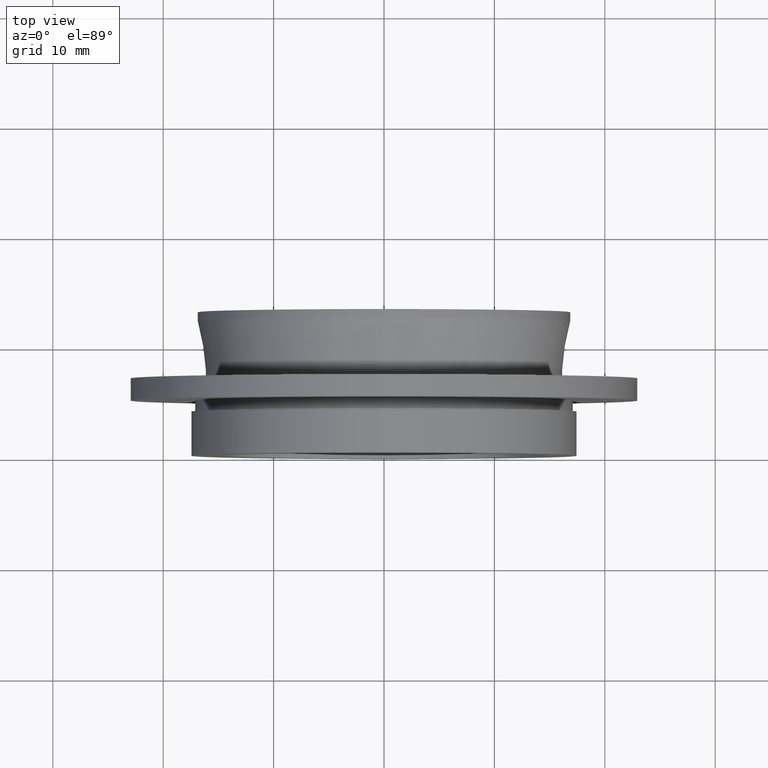
[diagram: clean part render]
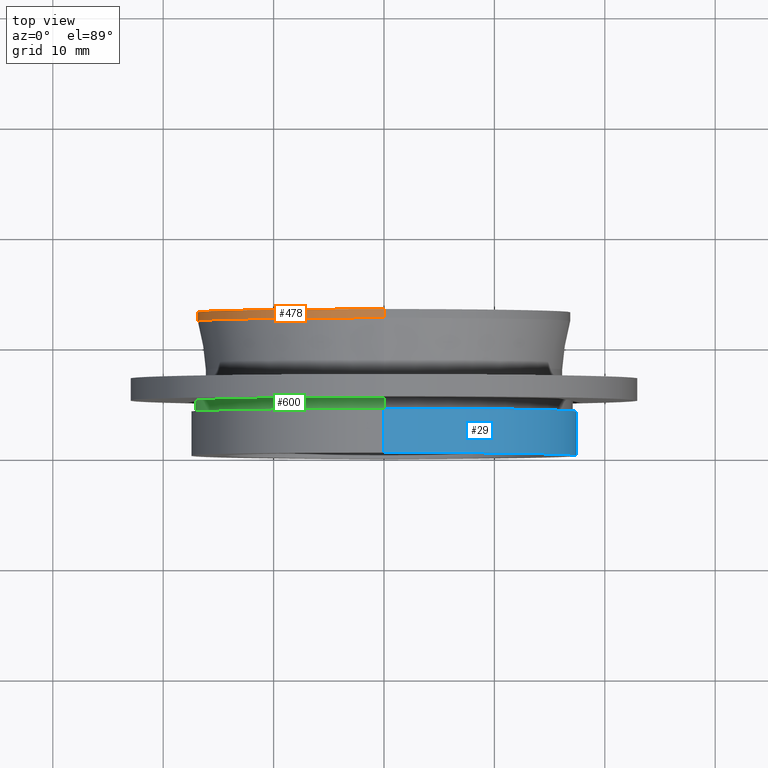
[diagram: same view with three faces highlighted in distinct colors, each labeled with its STEP entity id]
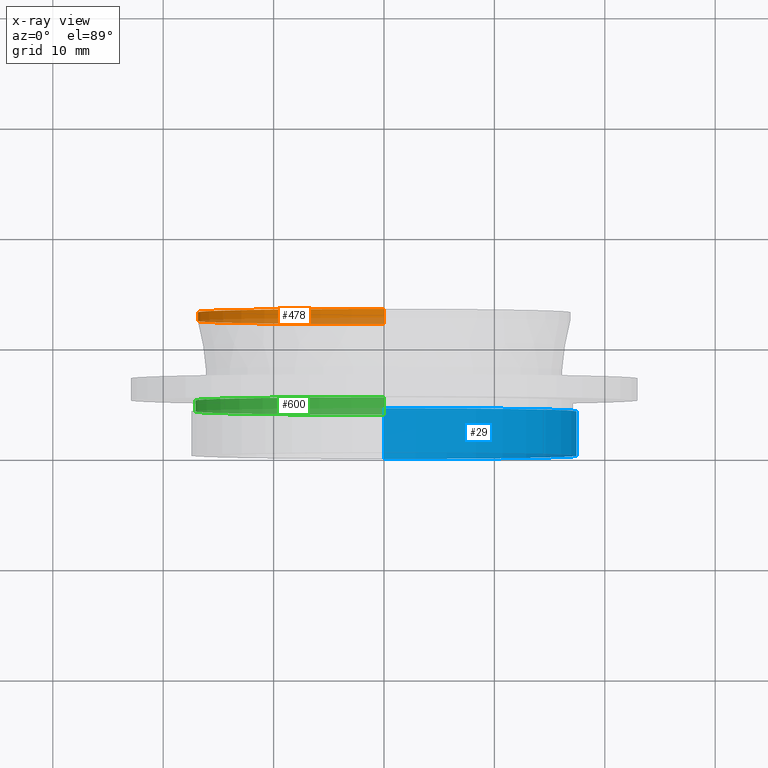
[diagram: x-ray of the same camera — body ghosted, the three highlighted faces saturated]
A machine part, top view with three faces highlighted in distinct colors.
The next image is the same camera in x-ray (body ghosted, the three faces saturated) — at least one of them is partly hidden behind the body in this view.
Their STEP definitions:

[orange] entity #478 — the highlighted cylindrical surface (partial cylindrical patch) has radius 16.865 mm, axis along (-0, -1, -0).
#13 = DIRECTION ( 'NONE',  ( -0.0000000000000000000, -1.000000000000000000, -0.0000000000000000000 ) ) ;
#26 = LINE ( 'NONE', #561, #70 ) ;
#42 = DIRECTION ( 'NONE',  ( -0.0000000000000000000, -1.000000000000000000, -0.0000000000000000000 ) ) ;
#43 = EDGE_CURVE ( 'NONE', #48, #163, #475, .T. ) ;
#48 = VERTEX_POINT ( 'NONE', #352 ) ;
#70 = VECTOR ( 'NONE', #291, 1000.000000000000000 ) ;
#96 = DIRECTION ( 'NONE',  ( -0.0000000000000000000, -1.000000000000000000, -0.0000000000000000000 ) ) ;
#131 = AXIS2_PLACEMENT_3D ( 'NONE', #479, #535, #317 ) ;
#143 = EDGE_CURVE ( 'NONE', #634, #163, #178, .T. ) ;
#147 = ORIENTED_EDGE ( 'NONE', *, *, #43, .T. ) ;
#161 = FACE_OUTER_BOUND ( 'NONE', #208, .T. ) ;
#163 = VERTEX_POINT ( 'NONE', #169 ) ;
#169 = CARTESIAN_POINT ( 'NONE',  ( 0.0000000000000000000, 12.19999999999999900, -16.86499999999999800 ) ) ;
#178 = CIRCLE ( 'NONE', #131, 16.86499999999999800 ) ;
#190 = DIRECTION ( 'NONE',  ( 0.0000000000000000000, 0.0000000000000000000, -1.000000000000000000 ) ) ;
#196 = CARTESIAN_POINT ( 'NONE',  ( 0.0000000000000000000, 13.00000000000000000, 0.0000000000000000000 ) ) ;
#197 = CARTESIAN_POINT ( 'NONE',  ( 2.065366826762010800E-015, 12.19999999999999900, 16.86499999999999800 ) ) ;
#208 = EDGE_LOOP ( 'NONE', ( #226, #436, #147, #407 ) ) ;
#226 = ORIENTED_EDGE ( 'NONE', *, *, #438, .F. ) ;
#229 = AXIS2_PLACEMENT_3D ( 'NONE', #196, #42, #190 ) ;
#250 = VERTEX_POINT ( 'NONE', #380 ) ;
#258 = CIRCLE ( 'NONE', #229, 16.86499999999999800 ) ;
#291 = DIRECTION ( 'NONE',  ( -0.0000000000000000000, -1.000000000000000000, -0.0000000000000000000 ) ) ;
#317 = DIRECTION ( 'NONE',  ( 0.0000000000000000000, 0.0000000000000000000, -1.000000000000000000 ) ) ;
#352 = CARTESIAN_POINT ( 'NONE',  ( 0.0000000000000000000, 13.00000000000000000, -16.86499999999999800 ) ) ;
#380 = CARTESIAN_POINT ( 'NONE',  ( 2.065366826762010800E-015, 13.00000000000000000, 16.86499999999999800 ) ) ;
#392 = EDGE_CURVE ( 'NONE', #250, #48, #258, .T. ) ;
#401 = CARTESIAN_POINT ( 'NONE',  ( 0.0000000000000000000, 0.0000000000000000000, 0.0000000000000000000 ) ) ;
#407 = ORIENTED_EDGE ( 'NONE', *, *, #143, .F. ) ;
#436 = ORIENTED_EDGE ( 'NONE', *, *, #392, .T. ) ;
#438 = EDGE_CURVE ( 'NONE', #250, #634, #26, .T. ) ;
#475 = LINE ( 'NONE', #630, #604 ) ;
#478 = ADVANCED_FACE ( 'NONE', ( #161 ), #563, .T. ) ;
#479 = CARTESIAN_POINT ( 'NONE',  ( 0.0000000000000000000, 12.19999999999999900, 0.0000000000000000000 ) ) ;
#535 = DIRECTION ( 'NONE',  ( -0.0000000000000000000, -1.000000000000000000, -0.0000000000000000000 ) ) ;
#561 = CARTESIAN_POINT ( 'NONE',  ( 2.065366826762010800E-015, 0.0000000000000000000, 16.86499999999999800 ) ) ;
#563 = CYLINDRICAL_SURFACE ( 'NONE', #660, 16.86499999999999800 ) ;
#574 = DIRECTION ( 'NONE',  ( 0.0000000000000000000, 0.0000000000000000000, -1.000000000000000000 ) ) ;
#604 = VECTOR ( 'NONE', #13, 1000.000000000000000 ) ;
#630 = CARTESIAN_POINT ( 'NONE',  ( 0.0000000000000000000, 0.0000000000000000000, -16.86499999999999800 ) ) ;
#634 = VERTEX_POINT ( 'NONE', #197 ) ;
#660 = AXIS2_PLACEMENT_3D ( 'NONE', #401, #96, #574 ) ;

[blue] entity #29 — the highlighted cylindrical surface (partial cylindrical patch) has radius 17.5 mm, axis along (-0, -1, -0).
#1 = DIRECTION ( 'NONE',  ( -0.0000000000000000000, -1.000000000000000000, -0.0000000000000000000 ) ) ;
#17 = ORIENTED_EDGE ( 'NONE', *, *, #64, .T. ) ;
#28 = ORIENTED_EDGE ( 'NONE', *, *, #476, .F. ) ;
#29 = ADVANCED_FACE ( 'NONE', ( #321 ), #587, .T. ) ;
#33 = VECTOR ( 'NONE', #1, 1000.000000000000000 ) ;
#50 = VERTEX_POINT ( 'NONE', #220 ) ;
#64 = EDGE_CURVE ( 'NONE', #348, #50, #622, .T. ) ;
#69 = CARTESIAN_POINT ( 'NONE',  ( 0.0000000000000000000, 3.999999999999997300, 0.0000000000000000000 ) ) ;
#81 = CIRCLE ( 'NONE', #485, 17.50000000000000000 ) ;
#115 = CARTESIAN_POINT ( 'NONE',  ( 0.0000000000000000000, -3.508329487826542300E-015, -17.50000000000000000 ) ) ;
#189 = AXIS2_PLACEMENT_3D ( 'NONE', #69, #417, #428 ) ;
#201 = CARTESIAN_POINT ( 'NONE',  ( 0.0000000000000000000, 0.0000000000000000000, -17.50000000000000000 ) ) ;
#203 = DIRECTION ( 'NONE',  ( 0.0000000000000000000, 0.0000000000000000000, -1.000000000000000000 ) ) ;
#204 = DIRECTION ( 'NONE',  ( -0.0000000000000000000, -1.000000000000000000, -0.0000000000000000000 ) ) ;
#220 = CARTESIAN_POINT ( 'NONE',  ( 2.143131898507868200E-015, 3.999999999999997300, 17.50000000000000000 ) ) ;
#294 = EDGE_LOOP ( 'NONE', ( #17, #566, #28, #582 ) ) ;
#321 = FACE_OUTER_BOUND ( 'NONE', #294, .T. ) ;
#348 = VERTEX_POINT ( 'NONE', #551 ) ;
#375 = VERTEX_POINT ( 'NONE', #661 ) ;
#404 = CARTESIAN_POINT ( 'NONE',  ( 0.0000000000000000000, -3.508329487826542300E-015, 0.0000000000000000000 ) ) ;
#409 = DIRECTION ( 'NONE',  ( 0.0000000000000000000, 0.0000000000000000000, -1.000000000000000000 ) ) ;
#417 = DIRECTION ( 'NONE',  ( -0.0000000000000000000, -1.000000000000000000, -0.0000000000000000000 ) ) ;
#428 = DIRECTION ( 'NONE',  ( 0.0000000000000000000, 0.0000000000000000000, -1.000000000000000000 ) ) ;
#473 = VECTOR ( 'NONE', #577, 1000.000000000000000 ) ;
#476 = EDGE_CURVE ( 'NONE', #642, #375, #81, .T. ) ;
#485 = AXIS2_PLACEMENT_3D ( 'NONE', #404, #204, #409 ) ;
#506 = CARTESIAN_POINT ( 'NONE',  ( 2.143131898507868200E-015, 0.0000000000000000000, 17.50000000000000000 ) ) ;
#523 = CARTESIAN_POINT ( 'NONE',  ( 0.0000000000000000000, 0.0000000000000000000, 0.0000000000000000000 ) ) ;
#551 = CARTESIAN_POINT ( 'NONE',  ( 0.0000000000000000000, 3.999999999999997300, -17.50000000000000000 ) ) ;
#552 = EDGE_CURVE ( 'NONE', #348, #642, #613, .T. ) ;
#566 = ORIENTED_EDGE ( 'NONE', *, *, #590, .T. ) ;
#577 = DIRECTION ( 'NONE',  ( -0.0000000000000000000, -1.000000000000000000, -0.0000000000000000000 ) ) ;
#582 = ORIENTED_EDGE ( 'NONE', *, *, #552, .F. ) ;
#587 = CYLINDRICAL_SURFACE ( 'NONE', #607, 17.50000000000000000 ) ;
#590 = EDGE_CURVE ( 'NONE', #50, #375, #603, .T. ) ;
#603 = LINE ( 'NONE', #506, #33 ) ;
#607 = AXIS2_PLACEMENT_3D ( 'NONE', #523, #626, #203 ) ;
#613 = LINE ( 'NONE', #201, #473 ) ;
#622 = CIRCLE ( 'NONE', #189, 17.50000000000000000 ) ;
#626 = DIRECTION ( 'NONE',  ( -0.0000000000000000000, -1.000000000000000000, -0.0000000000000000000 ) ) ;
#642 = VERTEX_POINT ( 'NONE', #115 ) ;
#661 = CARTESIAN_POINT ( 'NONE',  ( 2.143131898507868200E-015, -3.508329487826542300E-015, 17.50000000000000000 ) ) ;

[green] entity #600 — the highlighted cylindrical surface (partial cylindrical patch) has radius 17.1 mm, axis along (-0, -1, -0).
#4 = CARTESIAN_POINT ( 'NONE',  ( 2.094146026541974000E-015, 0.0000000000000000000, 17.10000000000000100 ) ) ;
#46 = EDGE_CURVE ( 'NONE', #118, #142, #406, .T. ) ;
#53 = DIRECTION ( 'NONE',  ( 0.0000000000000000000, 0.0000000000000000000, -1.000000000000000000 ) ) ;
#57 = DIRECTION ( 'NONE',  ( -0.0000000000000000000, -1.000000000000000000, -0.0000000000000000000 ) ) ;
#75 = CARTESIAN_POINT ( 'NONE',  ( 0.0000000000000000000, 3.999999999999998200, -17.10000000000000100 ) ) ;
#82 = LINE ( 'NONE', #288, #516 ) ;
#118 = VERTEX_POINT ( 'NONE', #588 ) ;
#124 = DIRECTION ( 'NONE',  ( -0.0000000000000000000, -1.000000000000000000, -0.0000000000000000000 ) ) ;
#134 = ORIENTED_EDGE ( 'NONE', *, *, #166, .F. ) ;
#141 = CIRCLE ( 'NONE', #152, 17.10000000000000100 ) ;
#142 = VERTEX_POINT ( 'NONE', #541 ) ;
#146 = CIRCLE ( 'NONE', #596, 17.10000000000000100 ) ;
#150 = DIRECTION ( 'NONE',  ( -0.0000000000000000000, -1.000000000000000000, -0.0000000000000000000 ) ) ;
#152 = AXIS2_PLACEMENT_3D ( 'NONE', #593, #124, #424 ) ;
#154 = CYLINDRICAL_SURFACE ( 'NONE', #469, 17.10000000000000100 ) ;
#166 = EDGE_CURVE ( 'NONE', #142, #224, #141, .T. ) ;
#183 = DIRECTION ( 'NONE',  ( -0.0000000000000000000, -1.000000000000000000, -0.0000000000000000000 ) ) ;
#192 = VECTOR ( 'NONE', #57, 1000.000000000000000 ) ;
#215 = ORIENTED_EDGE ( 'NONE', *, *, #278, .T. ) ;
#224 = VERTEX_POINT ( 'NONE', #75 ) ;
#249 = FACE_OUTER_BOUND ( 'NONE', #376, .T. ) ;
#254 = CARTESIAN_POINT ( 'NONE',  ( 0.0000000000000000000, 0.0000000000000000000, 0.0000000000000000000 ) ) ;
#278 = EDGE_CURVE ( 'NONE', #666, #224, #82, .T. ) ;
#288 = CARTESIAN_POINT ( 'NONE',  ( 0.0000000000000000000, 0.0000000000000000000, -17.10000000000000100 ) ) ;
#295 = DIRECTION ( 'NONE',  ( -0.0000000000000000000, -1.000000000000000000, -0.0000000000000000000 ) ) ;
#316 = CARTESIAN_POINT ( 'NONE',  ( 0.0000000000000000000, 4.999999999999998200, -17.10000000000000100 ) ) ;
#323 = ORIENTED_EDGE ( 'NONE', *, *, #46, .F. ) ;
#376 = EDGE_LOOP ( 'NONE', ( #323, #564, #215, #134 ) ) ;
#379 = EDGE_CURVE ( 'NONE', #118, #666, #146, .T. ) ;
#406 = LINE ( 'NONE', #4, #192 ) ;
#424 = DIRECTION ( 'NONE',  ( 0.0000000000000000000, 0.0000000000000000000, -1.000000000000000000 ) ) ;
#445 = CARTESIAN_POINT ( 'NONE',  ( 0.0000000000000000000, 4.999999999999998200, 0.0000000000000000000 ) ) ;
#451 = DIRECTION ( 'NONE',  ( 0.0000000000000000000, 0.0000000000000000000, -1.000000000000000000 ) ) ;
#469 = AXIS2_PLACEMENT_3D ( 'NONE', #254, #150, #53 ) ;
#516 = VECTOR ( 'NONE', #183, 1000.000000000000000 ) ;
#541 = CARTESIAN_POINT ( 'NONE',  ( 2.094146026541974000E-015, 3.999999999999998200, 17.10000000000000100 ) ) ;
#564 = ORIENTED_EDGE ( 'NONE', *, *, #379, .T. ) ;
#588 = CARTESIAN_POINT ( 'NONE',  ( 2.094146026541974000E-015, 4.999999999999998200, 17.10000000000000100 ) ) ;
#593 = CARTESIAN_POINT ( 'NONE',  ( 0.0000000000000000000, 3.999999999999998200, 0.0000000000000000000 ) ) ;
#596 = AXIS2_PLACEMENT_3D ( 'NONE', #445, #295, #451 ) ;
#600 = ADVANCED_FACE ( 'NONE', ( #249 ), #154, .T. ) ;
#666 = VERTEX_POINT ( 'NONE', #316 ) ;